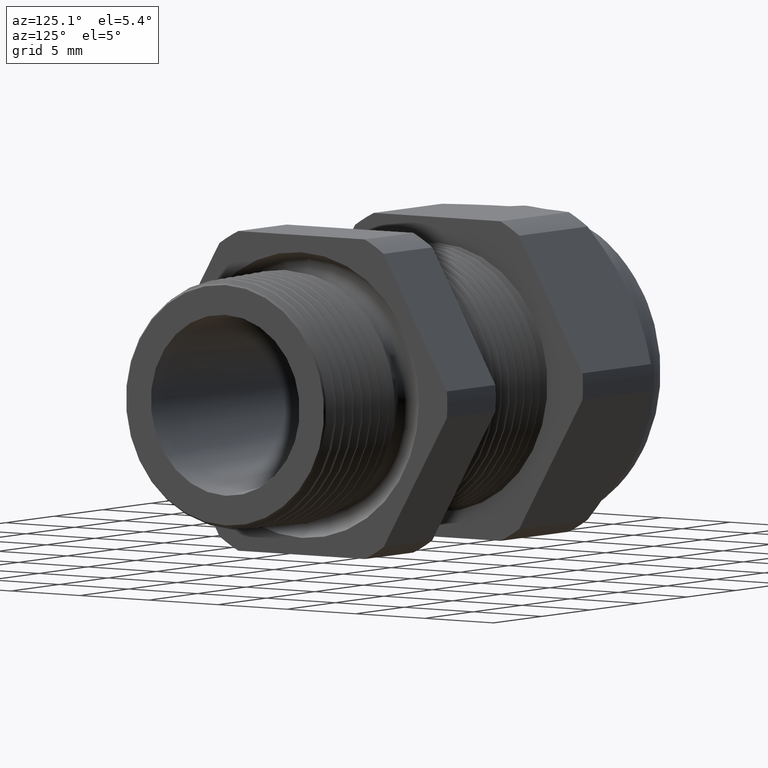
[diagram: clean part render]
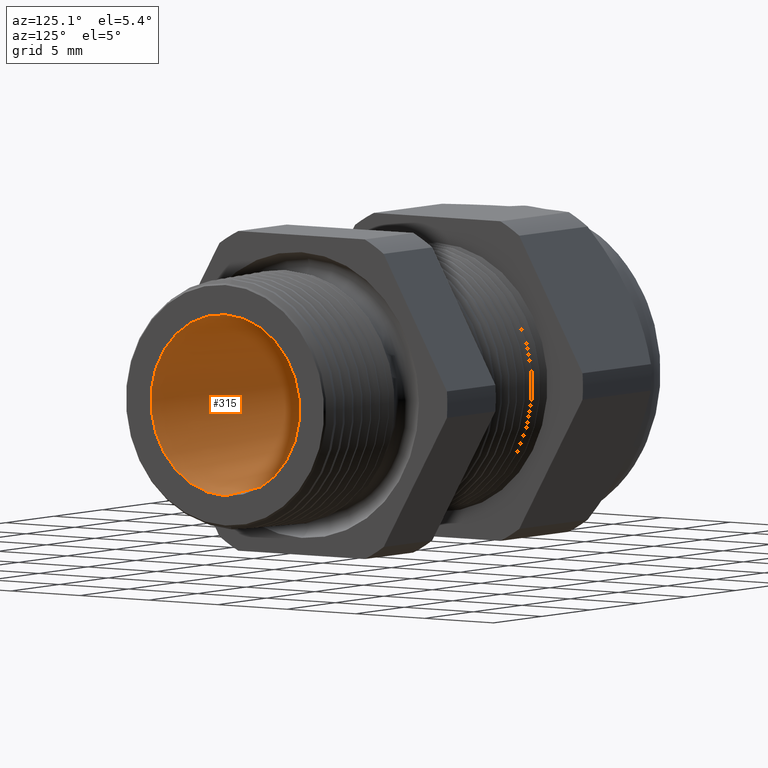
[diagram: same view with one face highlighted and labeled with its STEP entity id]
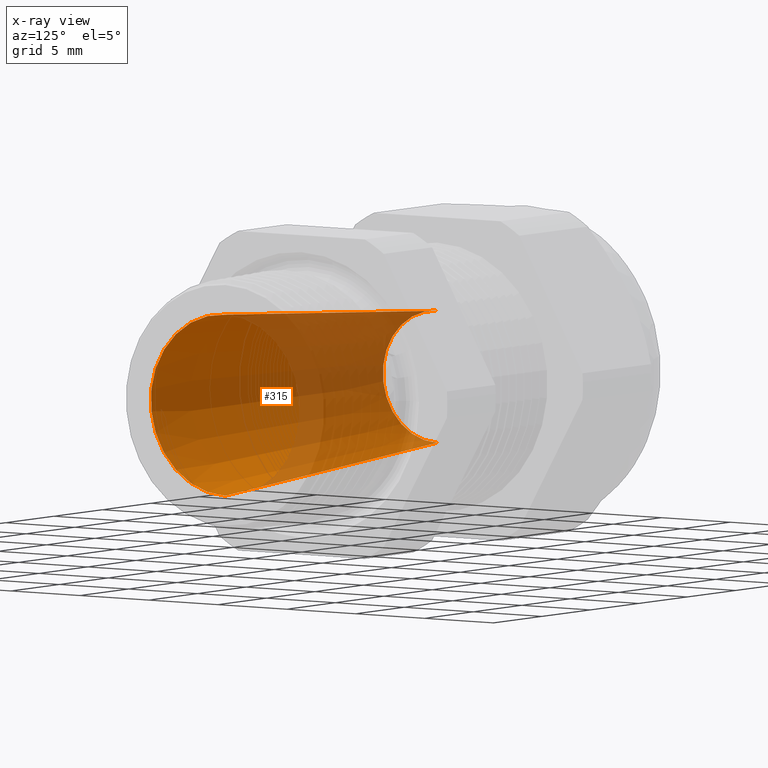
[diagram: x-ray of the same camera — body ghosted, the highlighted face saturated]
A machine part, auxiliary view. The second image highlights one B-rep face of the part: STEP entity #315.
The next image is the same camera in x-ray: the body ghosted, the highlighted face saturated — about 45% of this face is hidden behind the body in this view.
In plain terms, the highlighted conical surface has half-angle 3.818 deg.
Its self-contained STEP definition (entity closure, byte-faithful):
#292 = ORIENTED_EDGE ( 'NONE', *, *, #293, .T. ) ;
#293 = EDGE_CURVE ( 'NONE', #309, #318, #1924, .T. ) ;
#294 = ORIENTED_EDGE ( 'NONE', *, *, #295, .T. ) ;
#295 = EDGE_CURVE ( 'NONE', #318, #296, #1914, .T. ) ;
#296 = VERTEX_POINT ( 'NONE', #1915 ) ;
#297 = ORIENTED_EDGE ( 'NONE', *, *, #298, .F. ) ;
#298 = EDGE_CURVE ( 'NONE', #312, #296, #1972, .T. ) ;
#309 = VERTEX_POINT ( 'NONE', #1953 ) ;
#311 = EDGE_CURVE ( 'NONE', #309, #312, #1952, .T. ) ;
#312 = VERTEX_POINT ( 'NONE', #1947 ) ;
#315 = ADVANCED_FACE ( 'NONE', ( #1942 ), #2005, .F. ) ;
#316 = EDGE_LOOP ( 'NONE', ( #317, #292, #294, #297 ) ) ;
#317 = ORIENTED_EDGE ( 'NONE', *, *, #311, .F. ) ;
#318 = VERTEX_POINT ( 'NONE', #2000 ) ;
#1910 = DIRECTION ( 'NONE',  ( 0.0000000000000000000, 0.0000000000000000000, -1.000000000000000000 ) ) ;
#1911 = DIRECTION ( 'NONE',  ( 1.000000000000000000, 0.0000000000000000000, 0.0000000000000000000 ) ) ;
#1912 = CARTESIAN_POINT ( 'NONE',  ( 4.443791160244338600E-018, 0.0000000000000000000, 0.0000000000000000000 ) ) ;
#1913 = AXIS2_PLACEMENT_3D ( 'NONE', #1912, #1911, #1910 ) ;
#1914 = CIRCLE ( 'NONE', #1913, 0.2124574267310359600 ) ;
#1915 = CARTESIAN_POINT ( 'NONE',  ( 4.443791160244338600E-018, 0.0000000000000000000, -0.2124574267310359600 ) ) ;
#1916 = DIRECTION ( 'NONE',  ( 0.9977800507276000100, 8.155605555852239100E-018, 0.06659557320143644200 ) ) ;
#1917 = VECTOR ( 'NONE', #1916, 39.37007874015748100 ) ;
#1918 = CARTESIAN_POINT ( 'NONE',  ( -0.8608661417322833700, 1.898202538678397300E-017, 0.1550000000000000000 ) ) ;
#1924 = LINE ( 'NONE', #1918, #1917 ) ;
#1942 = FACE_OUTER_BOUND ( 'NONE', #316, .T. ) ;
#1947 = CARTESIAN_POINT ( 'NONE',  ( -0.8608661417322833700, 0.0000000000000000000, -0.1550000000000000000 ) ) ;
#1948 = DIRECTION ( 'NONE',  ( 0.0000000000000000000, 0.0000000000000000000, -1.000000000000000000 ) ) ;
#1949 = DIRECTION ( 'NONE',  ( 1.000000000000000000, 0.0000000000000000000, 0.0000000000000000000 ) ) ;
#1950 = CARTESIAN_POINT ( 'NONE',  ( -0.8608661417322833700, 0.0000000000000000000, 0.0000000000000000000 ) ) ;
#1951 = AXIS2_PLACEMENT_3D ( 'NONE', #1950, #1949, #1948 ) ;
#1952 = CIRCLE ( 'NONE', #1951, 0.1550000000000000000 ) ;
#1953 = CARTESIAN_POINT ( 'NONE',  ( -0.8608661417322833700, 2.250027807345431400E-017, 0.1550000000000000000 ) ) ;
#1969 = DIRECTION ( 'NONE',  ( 0.9977800507276000100, 0.0000000000000000000, -0.06659557320143644200 ) ) ;
#1970 = VECTOR ( 'NONE', #1969, 39.37007874015748100 ) ;
#1971 = CARTESIAN_POINT ( 'NONE',  ( -0.8608661417322833700, 0.0000000000000000000, -0.1550000000000000000 ) ) ;
#1972 = LINE ( 'NONE', #1971, #1970 ) ;
#2000 = CARTESIAN_POINT ( 'NONE',  ( 4.443791160244338600E-018, 2.601853076012465100E-017, 0.2124574267310359600 ) ) ;
#2001 = DIRECTION ( 'NONE',  ( 0.0000000000000000000, 0.0000000000000000000, -1.000000000000000000 ) ) ;
#2002 = DIRECTION ( 'NONE',  ( 1.000000000000000000, 0.0000000000000000000, 0.0000000000000000000 ) ) ;
#2003 = CARTESIAN_POINT ( 'NONE',  ( -0.8608661417322833700, 0.0000000000000000000, 0.0000000000000000000 ) ) ;
#2004 = AXIS2_PLACEMENT_3D ( 'NONE', #2003, #2002, #2001 ) ;
#2005 = CONICAL_SURFACE ( 'NONE', #2004, 0.1550000000000000000, 0.06664489660048481000 ) ;